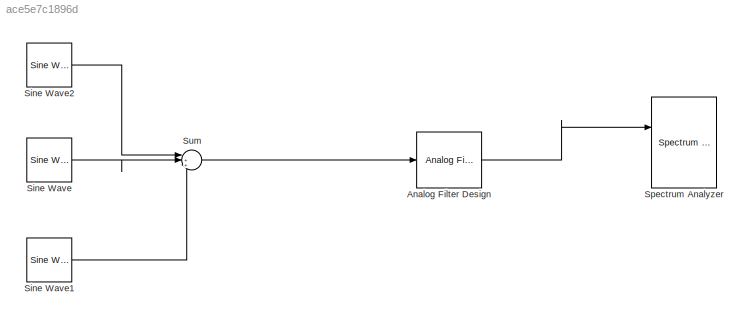
MODEL slx_ace5e7c1896d
KIND model
BLOCK [Reference] Analog Filter Design  REF=dsparch4/Analog
Filter Design
  N = 8
  Ports = [1, 1]
  Rp = 2
  Rs = 40
  SourceBlock = dsparch4/Analog\nFilter Design
  SourceType = Analog Filter Design
  Whi = 2*pi*42000
  Wlo = 2*pi*39000
  filttype = Bandpass
  method = Butterworth
BLOCK [Reference] Sine Wave  REF=dspsrcs4/Sine Wave
  Amplitude = 2
  CompMethod = Trigonometric fcn
  Frequency = 40000
  LastOutDataTypeStr = double
  OutComplex = Real
  OutDataTypeStr = double
  Phase = 0
  Ports = [0, 1]
  ResetState = Restart at time zero
  SampleMode = Continuous
  SampleTime = 1/100000000
  SamplesPerFrame = 1000
  SourceBlock = dspsrcs4/Sine Wave
  SourceType = Sine Wave
  TableSize = Speed
  additionalParams = off
  allowOverrides = on
  dataType = double
  fracBitsMode = Best precision
  numFracBits = 15
  udDataType = sfix(16)
  wordLen = 16
BLOCK [Reference] Sine Wave1  REF=dspsrcs4/Sine Wave
  Amplitude = 1
  CompMethod = Trigonometric fcn
  Frequency = 24000
  LastOutDataTypeStr = double
  OutComplex = Real
  OutDataTypeStr = double
  Phase = 0
  Ports = [0, 1]
  ResetState = Restart at time zero
  SampleMode = Continuous
  SampleTime = 1/100000000
  SamplesPerFrame = 1000
  SourceBlock = dspsrcs4/Sine Wave
  SourceType = Sine Wave
  TableSize = Speed
  additionalParams = off
  allowOverrides = on
  dataType = double
  fracBitsMode = Best precision
  numFracBits = 15
  udDataType = sfix(16)
  wordLen = 16
BLOCK [Reference] Sine Wave2  REF=dspsrcs4/Sine Wave
  Amplitude = 0.5
  CompMethod = Trigonometric fcn
  Frequency = 80000
  LastOutDataTypeStr = double
  OutComplex = Real
  OutDataTypeStr = double
  Phase = 0
  Ports = [0, 1]
  ResetState = Restart at time zero
  SampleMode = Continuous
  SampleTime = 1/100000000
  SamplesPerFrame = 1000
  SourceBlock = dspsrcs4/Sine Wave
  SourceType = Sine Wave
  TableSize = Speed
  additionalParams = off
  allowOverrides = on
  dataType = double
  fracBitsMode = Best precision
  numFracBits = 15
  udDataType = sfix(16)
  wordLen = 16
BLOCK [Reference] Spectrum Analyzer  REF=simulink_extras/Additional
Sinks/Spectrum
Analyzer
  HowOften = 64
  Ports = [2]
  SourceBlock = simulink_extras/Additional\nSinks/Spectrum\nAnalyzer
  SourceType = Spectrum Analyzer
  fftpts = 1024
  npts = 256
  sampleT = 1E-9
BLOCK [Sum] Sum
  IconShape = round
  InputSameDT = off
  Inputs = |+++
  OutDataTypeStr = Inherit: Inherit via internal rule
  Ports = [3, 1]
  SaturateOnIntegerOverflow = off
LINE Analog Filter Design:1 -> Spectrum Analyzer:1
LINE Sine Wave1:1 -> Sum:3
LINE Sine Wave2:1 -> Sum:1
LINE Sine Wave:1 -> Sum:2
LINE Sum:1 -> Analog Filter Design:1
